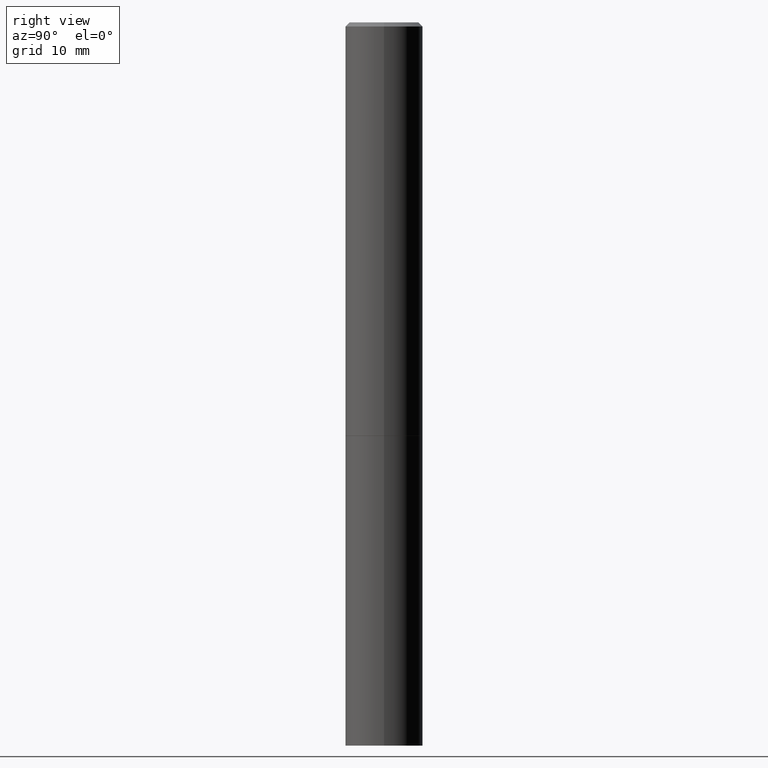
[diagram: clean part render]
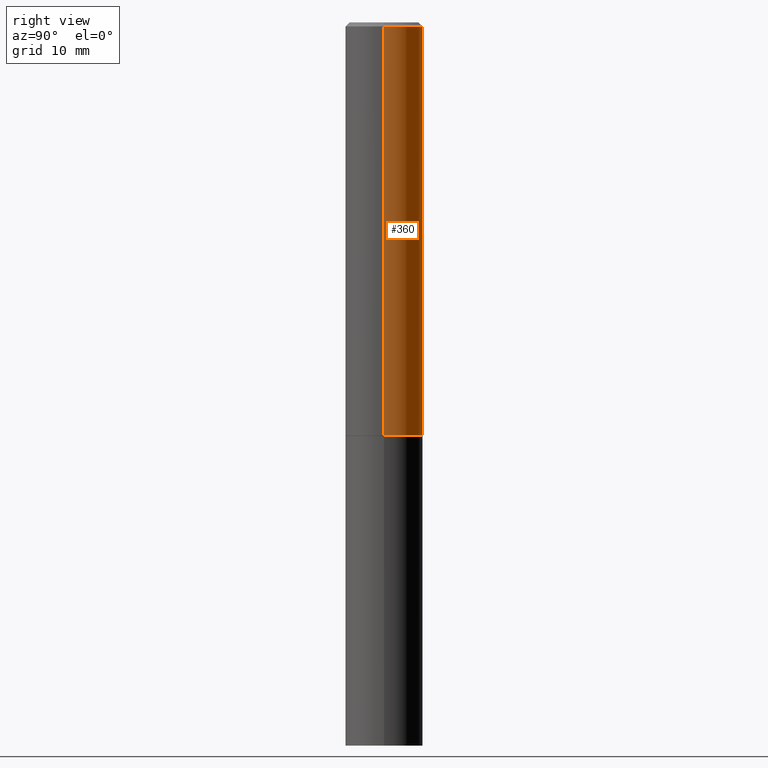
[diagram: same view with one face highlighted and labeled with its STEP entity id]
A machine part, right view. The second image highlights one B-rep face of the part: STEP entity #360.
In plain terms, the highlighted cylindrical surface (partial cylindrical patch) has radius 4.7625 mm, axis along (-0, 0, 1).
Its self-contained STEP definition (entity closure, byte-faithful):
#11 = DIRECTION ( 'NONE',  ( -2.445468806185136597E-29, 3.491481338843145583E-15, 1.000000000000000000 ) ) ;
#12 = CARTESIAN_POINT ( 'NONE',  ( 4.890937612370283668E-31, -6.982962677686305168E-17, -0.02000000000000004205 ) ) ;
#19 = DIRECTION ( 'NONE',  ( -2.445468806185136597E-29, 3.491481338843145583E-15, 1.000000000000000000 ) ) ;
#24 = CARTESIAN_POINT ( 'NONE',  ( 0.1874999999999998890, -1.309305502066174022E-15, 9.142831454617374006E-30 ) ) ;
#35 = VERTEX_POINT ( 'NONE', #140 ) ;
#39 = AXIS2_PLACEMENT_3D ( 'NONE', #159, #133, #102 ) ;
#44 = DIRECTION ( 'NONE',  ( 1.000000000000000000, -6.982962677686265133E-15, 0.000000000000000000 ) ) ;
#50 = LINE ( 'NONE', #310, #254 ) ;
#93 = CARTESIAN_POINT ( 'NONE',  ( -0.1874999999999997502, 1.239475875289309935E-15, -0.02000000000000004205 ) ) ;
#102 = DIRECTION ( 'NONE',  ( 1.000000000000000000, -6.982962677686266711E-15, 0.000000000000000000 ) ) ;
#106 = ORIENTED_EDGE ( 'NONE', *, *, #318, .T. ) ;
#118 = FACE_OUTER_BOUND ( 'NONE', #145, .T. ) ;
#119 = LINE ( 'NONE', #24, #127 ) ;
#121 = CIRCLE ( 'NONE', #320, 0.1874999999999997502 ) ;
#125 = CARTESIAN_POINT ( 'NONE',  ( 0.1875000000000000278, -8.288776698413622377E-15, -1.998999999999999666 ) ) ;
#127 = VECTOR ( 'NONE', #252, 39.37007874015748143 ) ;
#130 = VERTEX_POINT ( 'NONE', #125 ) ;
#133 = DIRECTION ( 'NONE',  ( -2.445468806185136597E-29, 3.491481338843145583E-15, 1.000000000000000000 ) ) ;
#140 = CARTESIAN_POINT ( 'NONE',  ( 0.1874999999999997502, -1.356173001359023494E-15, -0.02000000000000004205 ) ) ;
#145 = EDGE_LOOP ( 'NONE', ( #106, #351, #331, #164 ) ) ;
#159 = CARTESIAN_POINT ( 'NONE',  ( 4.888492143564087030E-29, -6.979471196347446580E-15, -1.998999999999999666 ) ) ;
#164 = ORIENTED_EDGE ( 'NONE', *, *, #348, .F. ) ;
#171 = CYLINDRICAL_SURFACE ( 'NONE', #264, 0.1874999999999998890 ) ;
#208 = CIRCLE ( 'NONE', #39, 0.1875000000000000278 ) ;
#227 = DIRECTION ( 'NONE',  ( 1.000000000000000000, -6.982962677686265922E-15, 4.876176775795935793E-29 ) ) ;
#239 = VERTEX_POINT ( 'NONE', #93 ) ;
#248 = EDGE_CURVE ( 'NONE', #35, #239, #121, .T. ) ;
#252 = DIRECTION ( 'NONE',  ( -2.445468806185136877E-29, 3.491481338843145188E-15, 1.000000000000000000 ) ) ;
#254 = VECTOR ( 'NONE', #308, 39.37007874015748143 ) ;
#264 = AXIS2_PLACEMENT_3D ( 'NONE', #330, #19, #227 ) ;
#298 = VERTEX_POINT ( 'NONE', #332 ) ;
#308 = DIRECTION ( 'NONE',  ( -2.445468806185136877E-29, 3.491481338843145188E-15, 1.000000000000000000 ) ) ;
#310 = CARTESIAN_POINT ( 'NONE',  ( -0.1874999999999998890, 1.332267629550187060E-15, -9.223003294227942385E-30 ) ) ;
#318 = EDGE_CURVE ( 'NONE', #130, #298, #208, .T. ) ;
#320 = AXIS2_PLACEMENT_3D ( 'NONE', #12, #11, #44 ) ;
#330 = CARTESIAN_POINT ( 'NONE',  ( 0.000000000000000000, 0.000000000000000000, 0.000000000000000000 ) ) ;
#331 = ORIENTED_EDGE ( 'NONE', *, *, #248, .F. ) ;
#332 = CARTESIAN_POINT ( 'NONE',  ( -0.1875000000000000278, -2.192382782011964724E-15, -1.998999999999999666 ) ) ;
#348 = EDGE_CURVE ( 'NONE', #130, #35, #119, .T. ) ;
#351 = ORIENTED_EDGE ( 'NONE', *, *, #364, .T. ) ;
#360 = ADVANCED_FACE ( 'NONE', ( #118 ), #171, .T. ) ;
#364 = EDGE_CURVE ( 'NONE', #298, #239, #50, .T. ) ;